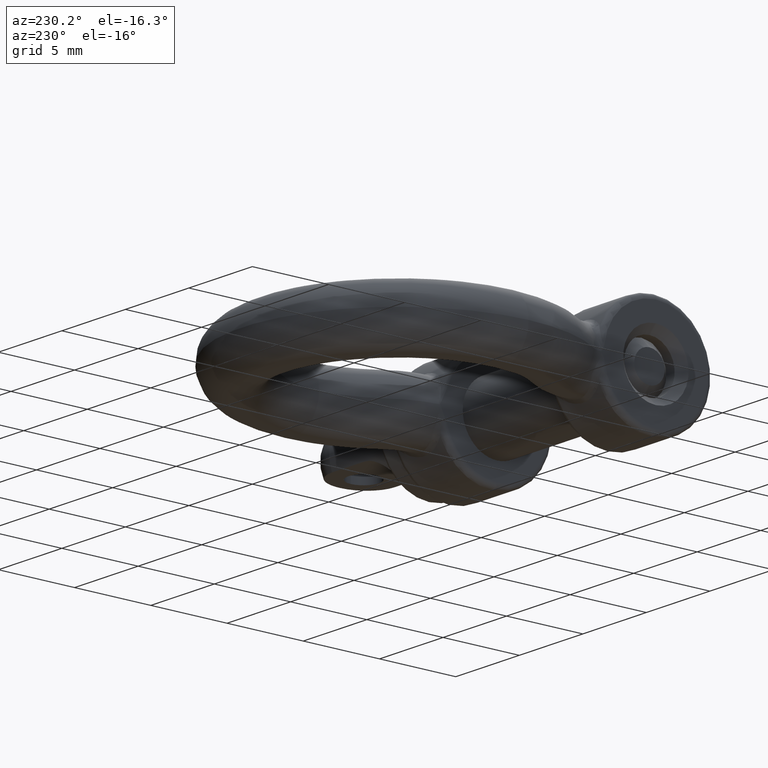
[diagram: clean part render]
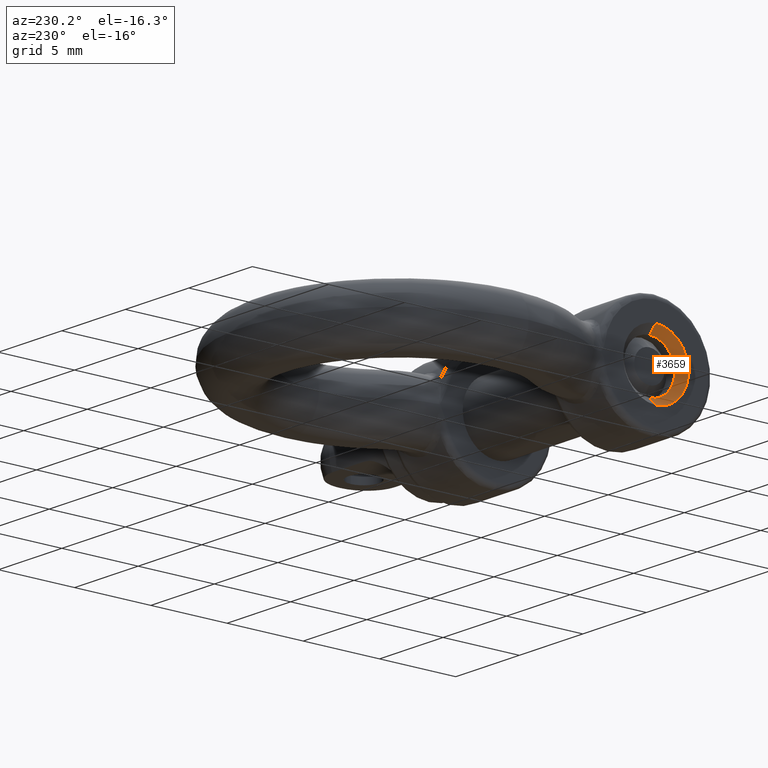
[diagram: same view with one face highlighted and labeled with its STEP entity id]
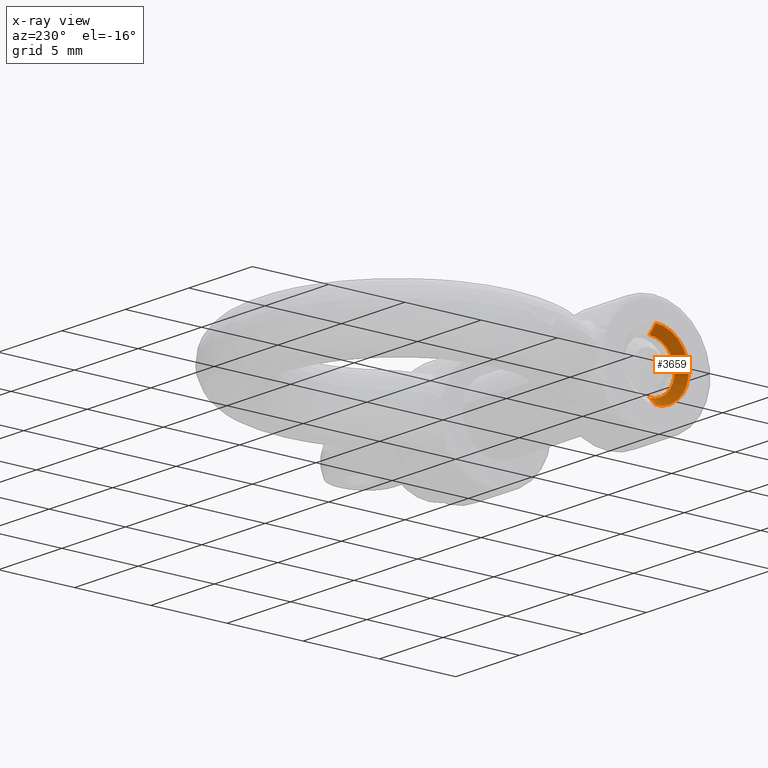
[diagram: x-ray of the same camera — body ghosted, the highlighted face saturated]
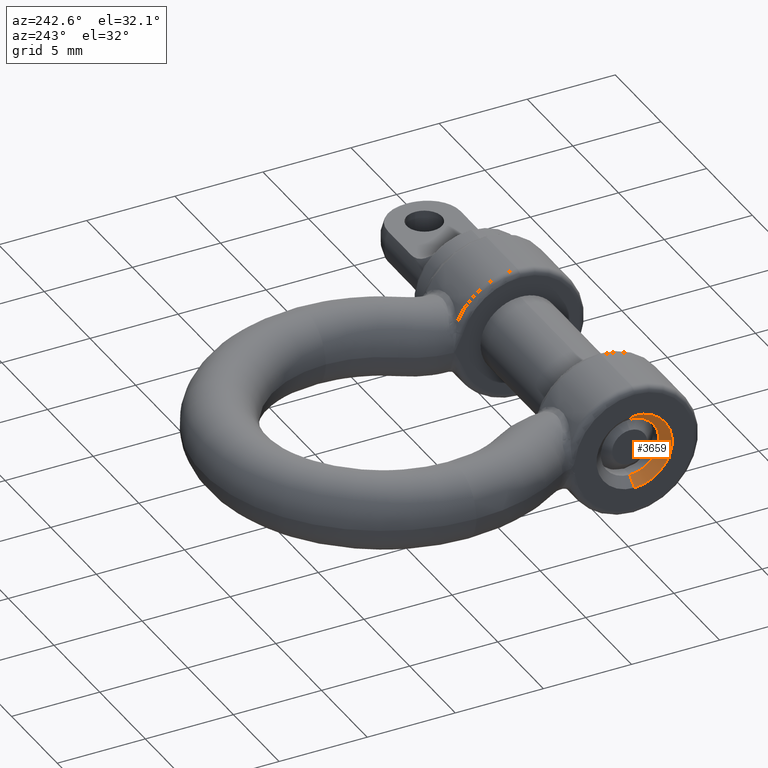
[diagram: same view with one face highlighted and labeled with its STEP entity id]
A machine part, auxiliary view. The second image highlights one B-rep face of the part: STEP entity #3659.
The next image is the same camera in x-ray: the body ghosted, the highlighted face saturated — about 0% of this face is hidden behind the body in this view.
A second angle (auxiliary view) of the same face is appended — the face is thin or edge-on in the first view.
In plain terms, the highlighted conical surface has half-angle 45 deg.
Its self-contained STEP definition (entity closure, byte-faithful):
#252 = CARTESIAN_POINT ( 'NONE',  ( -8.250000000000000000, 3.750000000000000000, 0.0000000000000000000 ) ) ;
#382 = ORIENTED_EDGE ( 'NONE', *, *, #10429, .T. ) ;
#1867 = VERTEX_POINT ( 'NONE', #4941 ) ;
#2105 = CARTESIAN_POINT ( 'NONE',  ( -7.750000000000005300, 3.750000000000000000, 1.649999999999998600 ) ) ;
#3063 = EDGE_CURVE ( 'NONE', #1867, #3771, #3141, .T. ) ;
#3141 = LINE ( 'NONE', #2105, #6100 ) ;
#3659 = ADVANCED_FACE ( 'NONE', ( #6490 ), #8455, .F. ) ;
#3771 = VERTEX_POINT ( 'NONE', #13224 ) ;
#4077 = DIRECTION ( 'NONE',  ( 0.0000000000000000000, 0.0000000000000000000, 1.000000000000000000 ) ) ;
#4911 = ORIENTED_EDGE ( 'NONE', *, *, #7107, .F. ) ;
#4941 = CARTESIAN_POINT ( 'NONE',  ( -7.750000000000005300, 3.750000000000000000, 1.649999999999998600 ) ) ;
#5349 = VERTEX_POINT ( 'NONE', #7979 ) ;
#5775 = ORIENTED_EDGE ( 'NONE', *, *, #6619, .F. ) ;
#6100 = VECTOR ( 'NONE', #13614, 999.9999999999998900 ) ;
#6490 = FACE_OUTER_BOUND ( 'NONE', #12843, .T. ) ;
#6619 = EDGE_CURVE ( 'NONE', #3771, #5349, #8011, .T. ) ;
#6925 = DIRECTION ( 'NONE',  ( 0.0000000000000000000, 0.0000000000000000000, 1.000000000000000000 ) ) ;
#7107 = EDGE_CURVE ( 'NONE', #7506, #1867, #12209, .T. ) ;
#7506 = VERTEX_POINT ( 'NONE', #12859 ) ;
#7666 = AXIS2_PLACEMENT_3D ( 'NONE', #13887, #10385, #15238 ) ;
#7979 = CARTESIAN_POINT ( 'NONE',  ( -8.250000000000000000, 3.750000000000000000, -2.149999999999999000 ) ) ;
#8011 = CIRCLE ( 'NONE', #9829, 2.149999999999999000 ) ;
#8137 = CARTESIAN_POINT ( 'NONE',  ( -7.750000000000005300, 3.750000000000000000, 0.0000000000000000000 ) ) ;
#8455 = CONICAL_SURFACE ( 'NONE', #7666, 1.649999999999998600, 0.7853981633974536100 ) ;
#9122 = DIRECTION ( 'NONE',  ( 1.000000000000000000, -0.0000000000000000000, -0.0000000000000000000 ) ) ;
#9660 = DIRECTION ( 'NONE',  ( -0.7071067811865439100, 8.659560562354979700E-017, -0.7071067811865512400 ) ) ;
#9727 = AXIS2_PLACEMENT_3D ( 'NONE', #8137, #14481, #6925 ) ;
#9829 = AXIS2_PLACEMENT_3D ( 'NONE', #252, #9122, #4077 ) ;
#10385 = DIRECTION ( 'NONE',  ( -1.000000000000000000, 0.0000000000000000000, 0.0000000000000000000 ) ) ;
#10429 = EDGE_CURVE ( 'NONE', #7506, #5349, #11585, .T. ) ;
#11585 = LINE ( 'NONE', #13339, #14101 ) ;
#12209 = CIRCLE ( 'NONE', #9727, 1.649999999999998600 ) ;
#12517 = ORIENTED_EDGE ( 'NONE', *, *, #3063, .F. ) ;
#12843 = EDGE_LOOP ( 'NONE', ( #4911, #382, #5775, #12517 ) ) ;
#12859 = CARTESIAN_POINT ( 'NONE',  ( -7.750000000000005300, 3.750000000000000000, -1.649999999999998600 ) ) ;
#13224 = CARTESIAN_POINT ( 'NONE',  ( -8.250000000000000000, 3.750000000000000000, 2.149999999999999000 ) ) ;
#13339 = CARTESIAN_POINT ( 'NONE',  ( -7.750000000000005300, 3.750000000000000000, -1.649999999999998600 ) ) ;
#13614 = DIRECTION ( 'NONE',  ( -0.7071067811865439100, 0.0000000000000000000, 0.7071067811865512400 ) ) ;
#13887 = CARTESIAN_POINT ( 'NONE',  ( -7.750000000000005300, 3.750000000000000000, 0.0000000000000000000 ) ) ;
#14101 = VECTOR ( 'NONE', #9660, 999.9999999999998900 ) ;
#14481 = DIRECTION ( 'NONE',  ( -1.000000000000000000, 0.0000000000000000000, 0.0000000000000000000 ) ) ;
#15238 = DIRECTION ( 'NONE',  ( 0.0000000000000000000, 0.0000000000000000000, 1.000000000000000000 ) ) ;